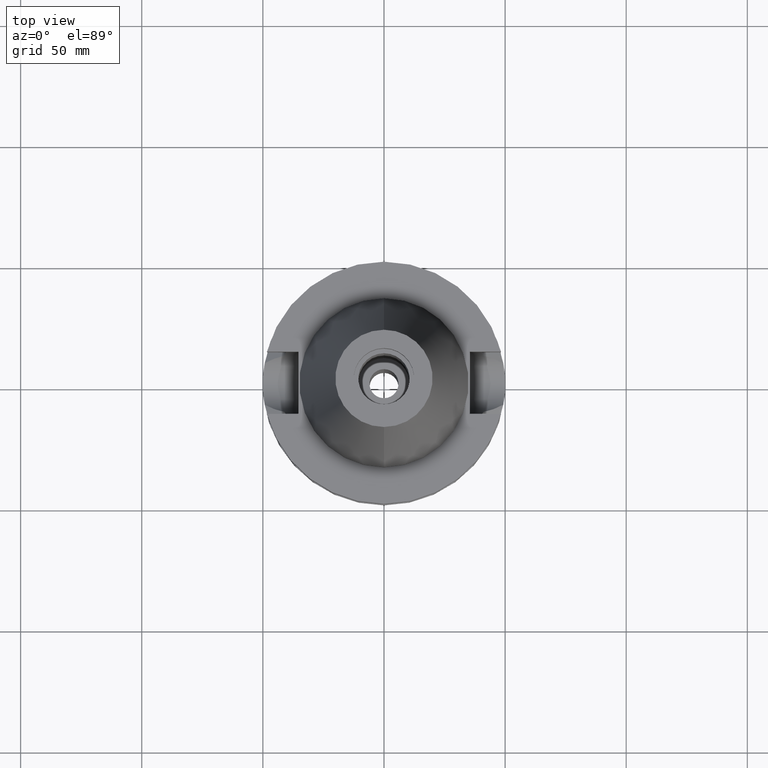
[diagram: clean part render]
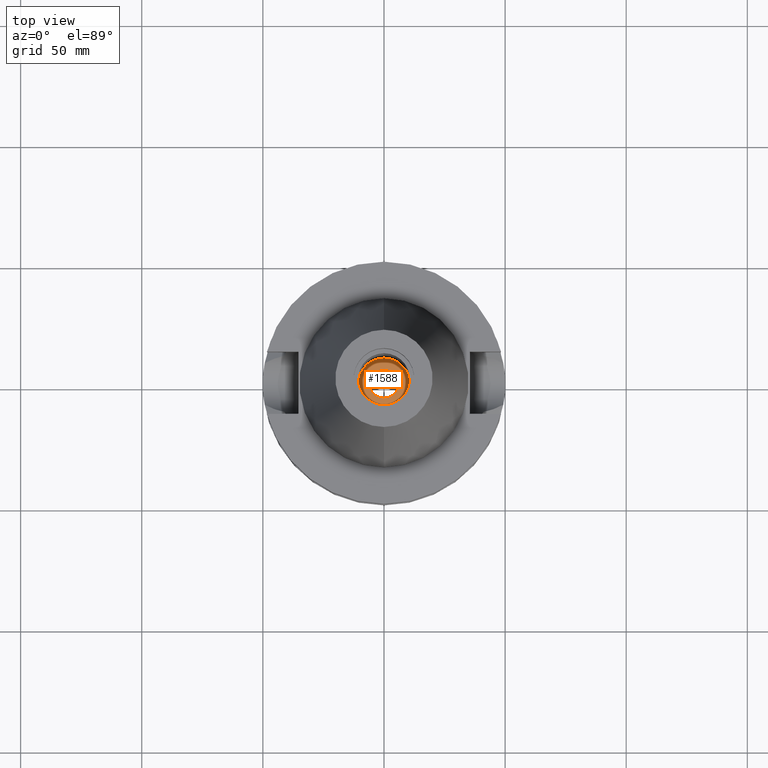
[diagram: same view with one face highlighted and labeled with its STEP entity id]
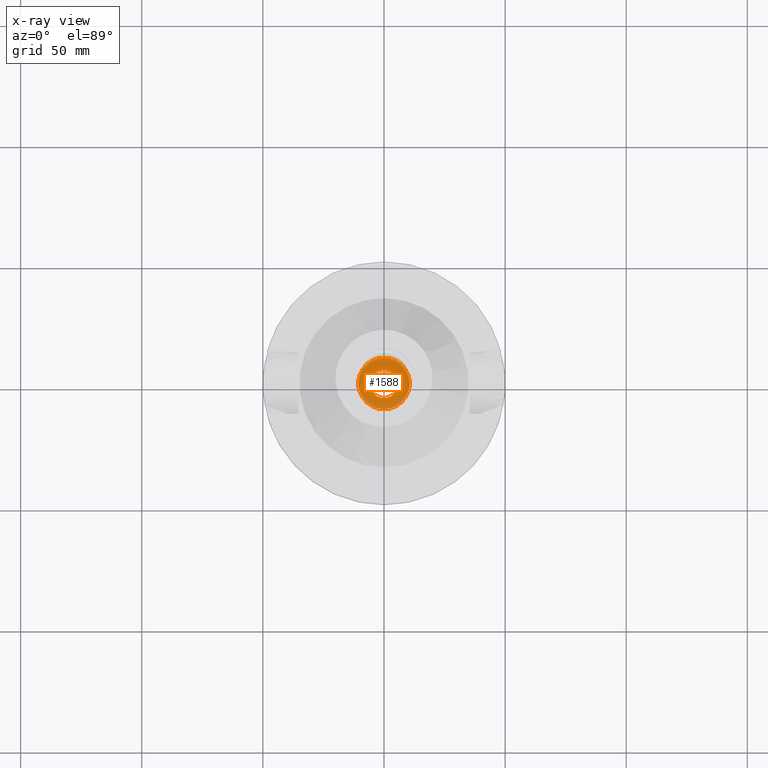
[diagram: x-ray of the same camera — body ghosted, the highlighted face saturated]
A machine part, top view. The second image highlights one B-rep face of the part: STEP entity #1588.
The next image is the same camera in x-ray: the body ghosted, the highlighted face saturated — about 17% of this face is hidden behind the body in this view.
In plain terms, the highlighted planar face has unit normal (0, 0, -1).
Its self-contained STEP definition (entity closure, byte-faithful):
#108=CARTESIAN_POINT('',(0.E0,2.634705123686E-14,-2.32E1));
#109=DIRECTION('',(0.E0,0.E0,-1.E0));
#110=DIRECTION('',(0.E0,-1.E0,0.E0));
#111=AXIS2_PLACEMENT_3D('',#108,#109,#110);
#116=CARTESIAN_POINT('',(0.E0,2.634705123686E-14,-2.32E1));
#117=DIRECTION('',(0.E0,0.E0,-1.E0));
#118=DIRECTION('',(0.E0,1.E0,0.E0));
#119=AXIS2_PLACEMENT_3D('',#116,#117,#118);
#124=CARTESIAN_POINT('',(0.E0,2.634705123686E-14,-2.32E1));
#125=DIRECTION('',(0.E0,0.E0,1.E0));
#126=DIRECTION('',(0.E0,-1.E0,0.E0));
#127=AXIS2_PLACEMENT_3D('',#124,#125,#126);
#132=CARTESIAN_POINT('',(0.E0,2.634705123686E-14,-2.32E1));
#133=DIRECTION('',(0.E0,0.E0,1.E0));
#134=DIRECTION('',(0.E0,1.E0,0.E0));
#135=AXIS2_PLACEMENT_3D('',#132,#133,#134);
#1294=CARTESIAN_POINT('',(0.E0,1.06E1,-2.32E1));
#1295=VERTEX_POINT('',#1294);
#1296=CARTESIAN_POINT('',(0.E0,-1.06E1,-2.32E1));
#1297=VERTEX_POINT('',#1296);
#1298=CARTESIAN_POINT('',(0.E0,-6.E0,-2.32E1));
#1299=CARTESIAN_POINT('',(0.E0,6.E0,-2.32E1));
#1300=VERTEX_POINT('',#1298);
#1301=VERTEX_POINT('',#1299);
#1573=CARTESIAN_POINT('',(0.E0,0.E0,-2.32E1));
#1574=DIRECTION('',(0.E0,0.E0,-1.E0));
#1575=DIRECTION('',(0.E0,-1.E0,0.E0));
#1576=AXIS2_PLACEMENT_3D('',#1573,#1574,#1575);
#1577=PLANE('',#1576);
#1578=ORIENTED_EDGE('',*,*,#1552,.T.);
#1579=ORIENTED_EDGE('',*,*,#1568,.T.);
#1580=EDGE_LOOP('',(#1578,#1579));
#1581=FACE_OUTER_BOUND('',#1580,.F.);
#1583=ORIENTED_EDGE('',*,*,#1582,.T.);
#1585=ORIENTED_EDGE('',*,*,#1584,.T.);
#1586=EDGE_LOOP('',(#1583,#1585));
#1587=FACE_BOUND('',#1586,.F.);
#112=CIRCLE('',#111,1.06E1);
#120=CIRCLE('',#119,1.06E1);
#128=CIRCLE('',#127,6.E0);
#136=CIRCLE('',#135,6.E0);
#1552=EDGE_CURVE('',#1297,#1295,#112,.T.);
#1568=EDGE_CURVE('',#1295,#1297,#120,.T.);
#1582=EDGE_CURVE('',#1300,#1301,#128,.T.);
#1584=EDGE_CURVE('',#1301,#1300,#136,.T.);
#1588=ADVANCED_FACE('',(#1581,#1587),#1577,.F.);